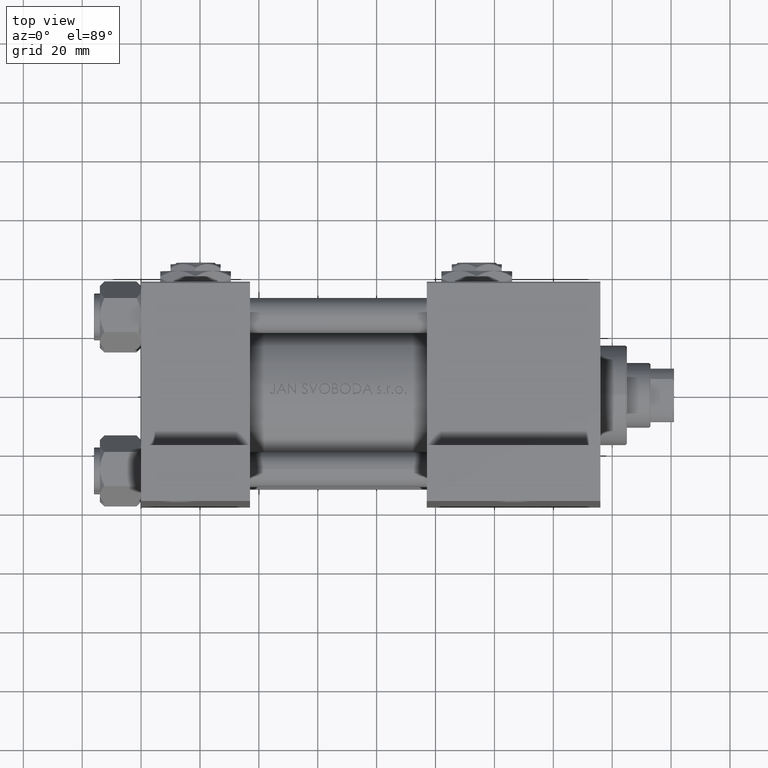
[diagram: clean part render]
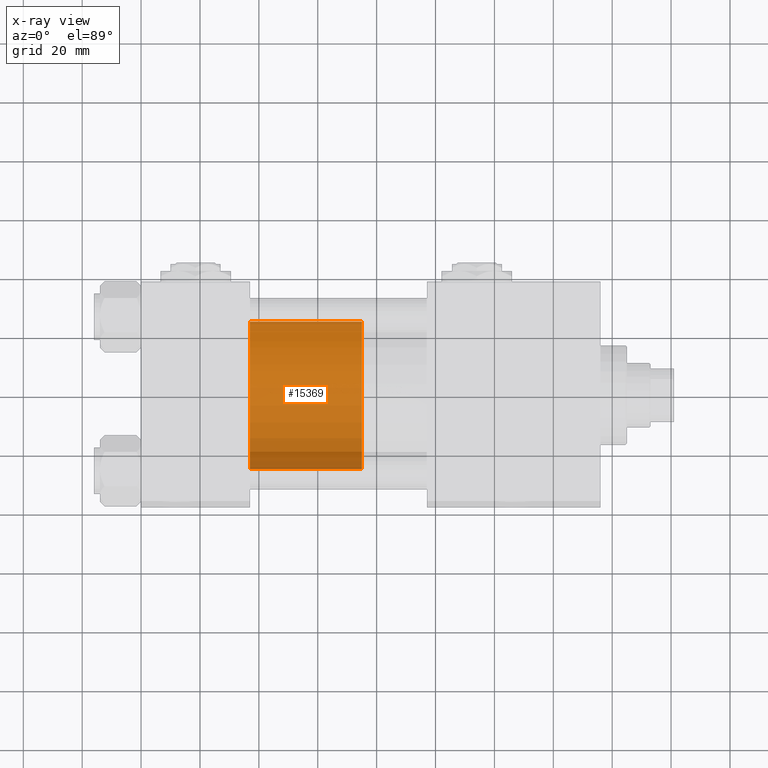
[diagram: x-ray — body ghosted, one internal face saturated and labeled with its STEP entity id]
A machine part, top view, then the same camera in x-ray: the body is ghosted and one INTERNAL B-rep face — a face not visible from any outside direction — is saturated and labeled: STEP entity #15369.
In plain terms, the highlighted cylindrical surface (partial cylindrical patch) has radius 25 mm, axis along (-1, 0, 0).
Its self-contained STEP definition (entity closure, byte-faithful):
#447 = ORIENTED_EDGE ( 'NONE', *, *, #46340, .F. ) ;
#1128 = DIRECTION ( 'NONE',  ( 1.000000000000000000, 0.000000000000000000, 0.000000000000000000 ) ) ;
#1860 = CARTESIAN_POINT ( 'NONE',  ( 0.000000000000000000, 0.000000000000000000, 0.000000000000000000 ) ) ;
#2604 = DIRECTION ( 'NONE',  ( -0.000000000000000000, -0.000000000000000000, -1.000000000000000000 ) ) ;
#3241 = LINE ( 'NONE', #44638, #25816 ) ;
#5968 = ORIENTED_EDGE ( 'NONE', *, *, #27936, .F. ) ;
#6396 = VERTEX_POINT ( 'NONE', #21627 ) ;
#8886 = CIRCLE ( 'NONE', #37346, 25.00000000000000000 ) ;
#10246 = DIRECTION ( 'NONE',  ( 1.000000000000000000, 0.000000000000000000, 0.000000000000000000 ) ) ;
#11487 = EDGE_LOOP ( 'NONE', ( #447, #47837, #18239, #5968 ) ) ;
#12977 = VERTEX_POINT ( 'NONE', #14057 ) ;
#13013 = DIRECTION ( 'NONE',  ( 0.000000000000000000, 0.000000000000000000, 1.000000000000000000 ) ) ;
#13265 = DIRECTION ( 'NONE',  ( -1.000000000000000000, 0.000000000000000000, 0.000000000000000000 ) ) ;
#14057 = CARTESIAN_POINT ( 'NONE',  ( 25.00000000000000000, 3.061616997868383043E-15, 0.000000000000000000 ) ) ;
#15369 = ADVANCED_FACE ( 'NONE', ( #21677 ), #20941, .T. ) ;
#18239 = ORIENTED_EDGE ( 'NONE', *, *, #47883, .T. ) ;
#20941 = CYLINDRICAL_SURFACE ( 'NONE', #40536, 25.00000000000000000 ) ;
#21627 = CARTESIAN_POINT ( 'NONE',  ( 25.00000000000000000, 3.061616997868383043E-15, 38.00000000000000000 ) ) ;
#21677 = FACE_OUTER_BOUND ( 'NONE', #11487, .T. ) ;
#23094 = CARTESIAN_POINT ( 'NONE',  ( 25.00000000000000000, 3.061616997868383043E-15, 38.00000000000000000 ) ) ;
#25066 = EDGE_CURVE ( 'NONE', #6396, #12977, #41689, .T. ) ;
#25766 = VECTOR ( 'NONE', #48409, 1000.000000000000000 ) ;
#25816 = VECTOR ( 'NONE', #26040, 1000.000000000000000 ) ;
#26040 = DIRECTION ( 'NONE',  ( -0.000000000000000000, -0.000000000000000000, -1.000000000000000000 ) ) ;
#27936 = EDGE_CURVE ( 'NONE', #42090, #29998, #3241, .T. ) ;
#28628 = CARTESIAN_POINT ( 'NONE',  ( 0.000000000000000000, 0.000000000000000000, 38.00000000000000000 ) ) ;
#29998 = VERTEX_POINT ( 'NONE', #48099 ) ;
#33509 = DIRECTION ( 'NONE',  ( 0.000000000000000000, 0.000000000000000000, 1.000000000000000000 ) ) ;
#37346 = AXIS2_PLACEMENT_3D ( 'NONE', #44196, #33509, #10246 ) ;
#39024 = AXIS2_PLACEMENT_3D ( 'NONE', #1860, #13013, #1128 ) ;
#40536 = AXIS2_PLACEMENT_3D ( 'NONE', #28628, #2604, #13265 ) ;
#40602 = CIRCLE ( 'NONE', #39024, 25.00000000000000000 ) ;
#41689 = LINE ( 'NONE', #23094, #25766 ) ;
#42090 = VERTEX_POINT ( 'NONE', #48513 ) ;
#44196 = CARTESIAN_POINT ( 'NONE',  ( 0.000000000000000000, 0.000000000000000000, 38.00000000000000000 ) ) ;
#44638 = CARTESIAN_POINT ( 'NONE',  ( -25.00000000000000000, 0.000000000000000000, 38.00000000000000000 ) ) ;
#46340 = EDGE_CURVE ( 'NONE', #6396, #42090, #8886, .T. ) ;
#47837 = ORIENTED_EDGE ( 'NONE', *, *, #25066, .T. ) ;
#47883 = EDGE_CURVE ( 'NONE', #12977, #29998, #40602, .T. ) ;
#48099 = CARTESIAN_POINT ( 'NONE',  ( -25.00000000000000000, 0.000000000000000000, 0.000000000000000000 ) ) ;
#48409 = DIRECTION ( 'NONE',  ( -0.000000000000000000, -0.000000000000000000, -1.000000000000000000 ) ) ;
#48513 = CARTESIAN_POINT ( 'NONE',  ( -25.00000000000000000, 0.000000000000000000, 38.00000000000000000 ) ) ;